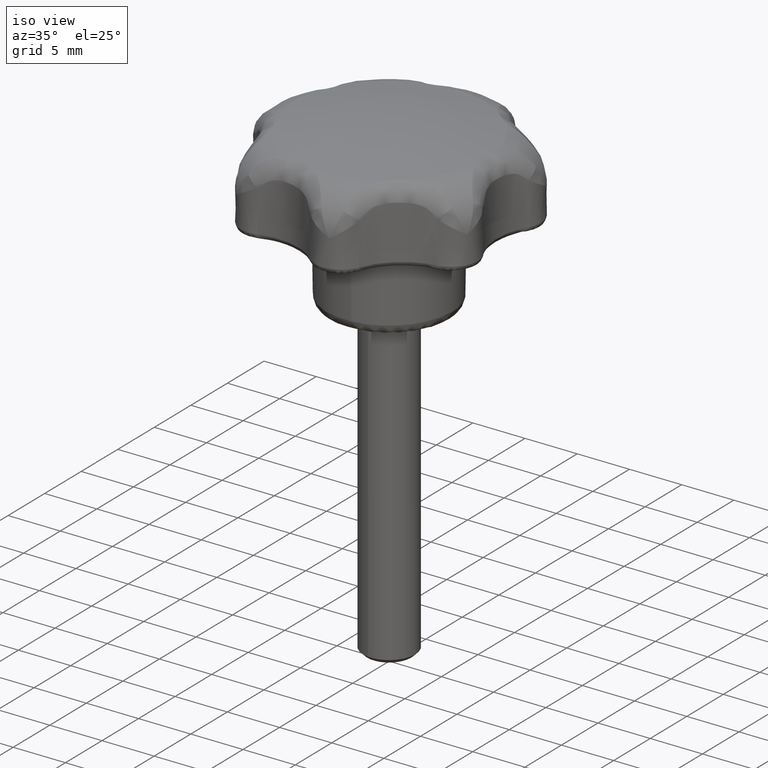
[diagram: clean part render]
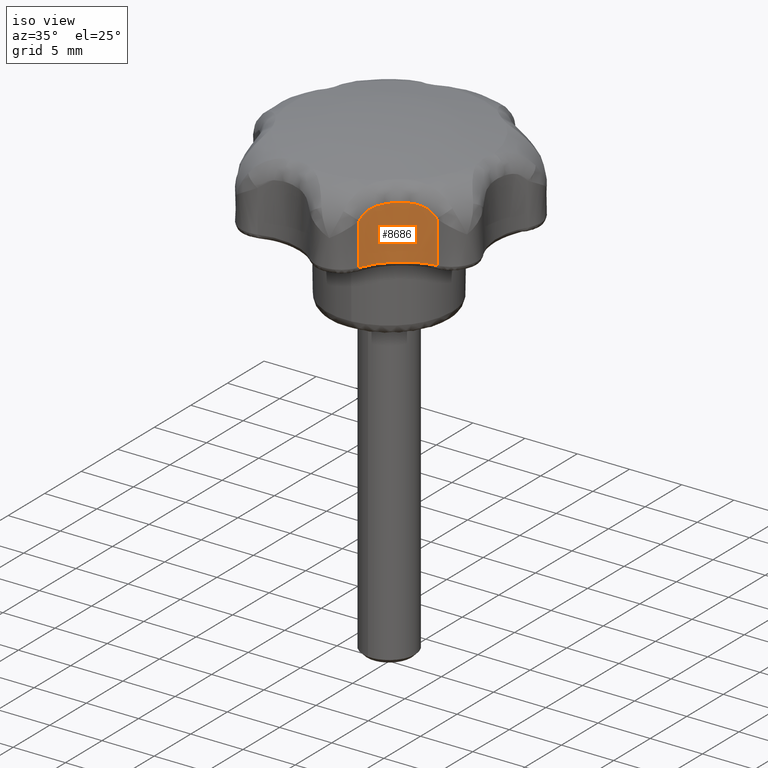
[diagram: same view with one face highlighted and labeled with its STEP entity id]
A machine part, iso view. The second image highlights one B-rep face of the part: STEP entity #8686.
In plain terms, the highlighted face is a freeform B-spline surface patch.
Its self-contained STEP definition (entity closure, byte-faithful):
#1271=CARTESIAN_POINT('',(9.352328902325711,-6.815245265479380,4.529263871044691));
#1272=VERTEX_POINT('',#1271);
#1412=CARTESIAN_POINT('',(7.228323154483910,-7.531859688448060,5.602181755613060));
#1413=VERTEX_POINT('',#1412);
#1427=CARTESIAN_POINT('',(9.352328902325711,-6.815245265479380,4.529263871044691));
#1428=CARTESIAN_POINT('',(9.231726878122949,-6.831931750824026,4.710587859803886));
#1429=CARTESIAN_POINT('',(9.088493858250363,-6.855343513871315,4.869634969981575));
#1430=CARTESIAN_POINT('',(8.882117092742400,-6.899349992789642,5.040415563436484));
#1431=CARTESIAN_POINT('',(8.839307908005837,-6.908939601489816,5.073255298817595));
#1432=CARTESIAN_POINT('',(8.752364488465759,-6.929469035929506,5.135106001774219));
#1433=CARTESIAN_POINT('',(8.619597241947103,-6.962355733786815,5.222492042457050));
#1434=CARTESIAN_POINT('',(8.480401390634899,-7.001941231082210,5.294640455228734));
#1435=CARTESIAN_POINT('',(8.290135622189576,-7.061390004140926,5.378835849224731));
#1436=CARTESIAN_POINT('',(8.192172584912637,-7.094659527593313,5.415024819690480));
#1437=CARTESIAN_POINT('',(7.997420612490962,-7.166631767255672,5.475694393833916));
#1438=CARTESIAN_POINT('',(7.900132508834723,-7.205460456293839,5.500463178935267));
#1439=CARTESIAN_POINT('',(7.706315155494604,-7.288854992439655,5.541537383512058));
#1440=CARTESIAN_POINT('',(7.609784988865734,-7.333420332629392,5.557839501411896));
#1441=CARTESIAN_POINT('',(7.417969923607048,-7.428325965818433,5.584218346163751));
#1442=CARTESIAN_POINT('',(7.322427377524405,-7.478812899554172,5.594315695242823));
#1443=CARTESIAN_POINT('',(7.228323154483906,-7.531859688448057,5.602181755613054));
#1444=B_SPLINE_CURVE_WITH_KNOTS('',3,(#1427,#1428,#1429,#1430,#1431,#1432,#1433,#1434,#1435,#1436,#1437,#1438,#1439,#1440,#1441,#1442,#1443),.UNSPECIFIED.,.F.,.U.,(4,2,2,1,2,2,2,2,4),(0.0,0.250000000000002,0.312500000000002,0.375000000000002,0.500000000000001,0.625000000000001,0.750000000000001,0.875000000000000,1.0),.UNSPECIFIED.);
#1445=EDGE_CURVE('',#1272,#1413,#1444,.T.);
#1526=CARTESIAN_POINT('',(5.734567091649440,-8.723090407848028,5.602181755613060));
#1527=VERTEX_POINT('',#1526);
#1541=CARTESIAN_POINT('',(7.228323154483910,-7.531859688448060,5.602181755613060));
#1542=CARTESIAN_POINT('',(6.947344979361283,-7.690247797482276,5.625668387953464));
#1543=CARTESIAN_POINT('',(6.418024048291525,-8.047947536462839,5.648675287855698));
#1544=CARTESIAN_POINT('',(5.951507604138305,-8.484401610415590,5.625668387953435));
#1545=CARTESIAN_POINT('',(5.734567091649440,-8.723090407848028,5.602181755613060));
#1546=B_SPLINE_CURVE_WITH_KNOTS('',3,(#1541,#1542,#1543,#1544,#1545),.UNSPECIFIED.,.F.,.U.,(4,1,4),(0.0,0.500000000000000,1.0),.UNSPECIFIED.);
#1547=EDGE_CURVE('',#1413,#1527,#1546,.T.);
#1651=CARTESIAN_POINT('',(4.563284031942840,-10.634380462738219,4.529264595418580));
#1652=VERTEX_POINT('',#1651);
#1666=CARTESIAN_POINT('',(5.734567091649440,-8.723090407848027,5.602181755613051));
#1667=CARTESIAN_POINT('',(5.589482450676374,-8.882719783119999,5.586474456032704));
#1668=CARTESIAN_POINT('',(5.454332468420760,-9.048728795040828,5.562309618087499));
#1669=CARTESIAN_POINT('',(5.298179697445258,-9.262526521243839,5.510810898392637));
#1670=CARTESIAN_POINT('',(5.267589491647332,-9.305597900756579,5.499428236304374));
#1671=CARTESIAN_POINT('',(5.207702770603985,-9.392310617130974,5.474150183519468));
#1672=CARTESIAN_POINT('',(5.178326939964452,-9.436076669235687,5.460208121446759));
#1673=CARTESIAN_POINT('',(5.092957479138290,-9.566900615465737,5.414485364029898));
#1674=CARTESIAN_POINT('',(5.039626461095650,-9.653595491304236,5.378807869619611));
#1675=CARTESIAN_POINT('',(4.939895909326869,-9.824852375426184,5.295158151736826));
#1676=CARTESIAN_POINT('',(4.893495177853029,-9.909417114855282,5.247192760192351));
#1677=CARTESIAN_POINT('',(4.828879390034158,-10.033782008367419,5.164512701093246));
#1678=CARTESIAN_POINT('',(4.808103951131888,-10.074966215164920,5.135038576535954));
#1679=CARTESIAN_POINT('',(4.768781966527458,-10.155083052631269,5.073244602502070));
#1680=CARTESIAN_POINT('',(4.750169611128169,-10.194133606247810,5.040862163473928));
#1681=CARTESIAN_POINT('',(4.697241583424924,-10.308142271122630,4.939245517037857));
#1682=CARTESIAN_POINT('',(4.665827380673394,-10.379962369630430,4.865550401078675));
#1683=CARTESIAN_POINT('',(4.609648329160852,-10.514540021469720,4.706058085630367));
#1684=CARTESIAN_POINT('',(4.584823504208689,-10.577482040227840,4.619872450888252));
#1685=CARTESIAN_POINT('',(4.563284031942840,-10.634380462738219,4.529264595418580));
#1686=B_SPLINE_CURVE_WITH_KNOTS('',3,(#1666,#1667,#1668,#1669,#1670,#1671,#1672,#1673,#1674,#1675,#1676,#1677,#1678,#1679,#1680,#1681,#1682,#1683,#1684,#1685),.UNSPECIFIED.,.F.,.U.,(4,2,2,2,2,2,2,2,2,4),(0.0,0.249999999999998,0.312499999999998,0.374999999999998,0.499999999999999,0.624999999999999,0.687499999999999,0.749999999999999,0.875000000000000,1.0),.UNSPECIFIED.);
#1687=EDGE_CURVE('',#1527,#1652,#1686,.T.);
#6274=CARTESIAN_POINT('',(4.563284031942840,-10.634380462738219,0.499999999999945));
#6275=VERTEX_POINT('',#6274);
#6418=CARTESIAN_POINT('',(9.352328902325711,-6.815245265479380,0.499999999999945));
#6419=VERTEX_POINT('',#6418);
#6433=CARTESIAN_POINT('',(4.563284031942842,-10.634380462738219,0.499999999999945));
#6434=CARTESIAN_POINT('',(5.824262699804353,-7.303393698800862,0.499999999999945));
#6435=CARTESIAN_POINT('',(9.352328902325711,-6.815245265479380,0.499999999999945));
#6443=(BOUNDED_CURVE()B_SPLINE_CURVE(2,(#6433,#6434,#6435),.UNSPECIFIED.,.F.,.U.)CURVE()GEOMETRIC_REPRESENTATION_ITEM()QUASI_UNIFORM_CURVE()RATIONAL_B_SPLINE_CURVE((1.0,0.859906545173898,1.0))REPRESENTATION_ITEM(''));
#6444=EDGE_CURVE('',#6275,#6419,#6443,.T.);
#8656=CARTESIAN_POINT('',(9.571937958565741,-6.788974983543757,5.765601133852190));
#8657=CARTESIAN_POINT('',(9.571937958565741,-6.788974983543757,0.368359971653638));
#8658=CARTESIAN_POINT('',(5.664156648546678,-7.183524337908878,5.765601133852190));
#8659=CARTESIAN_POINT('',(5.664156648546678,-7.183524337908878,0.368359971653638));
#8660=CARTESIAN_POINT('',(4.462416059236627,-10.922808161847483,5.765601133852190));
#8661=CARTESIAN_POINT('',(4.462416059236627,-10.922808161847483,0.368359971653638));
#8669=(BOUNDED_SURFACE()B_SPLINE_SURFACE(1,2,((#8656,#8658,#8660),(#8657,#8659,#8661)),.UNSPECIFIED.,.F.,.F.,.U.)B_SPLINE_SURFACE_WITH_KNOTS((2,2),(3,3),(0.0,5.397241162198552),(0.0,7.156749267452148),.UNSPECIFIED.)GEOMETRIC_REPRESENTATION_ITEM()RATIONAL_B_SPLINE_SURFACE(((1.0,0.833240438604861,0.991800910766828),(1.0,0.833240438604861,0.991800910766828)))REPRESENTATION_ITEM('')SURFACE());
#8670=CARTESIAN_POINT('',(9.352328902325711,-6.815245265479380,4.529263871044691));
#8671=CARTESIAN_POINT('',(9.352328902325711,-6.815245265479380,0.499999999999945));
#8672=QUASI_UNIFORM_CURVE('',1,(#8670,#8671),.UNSPECIFIED.,.F.,.U.);
#8673=EDGE_CURVE('',#1272,#6419,#8672,.T.);
#8674=ORIENTED_EDGE('',*,*,#8673,.F.);
#8675=ORIENTED_EDGE('',*,*,#1445,.T.);
#8676=ORIENTED_EDGE('',*,*,#1547,.T.);
#8677=ORIENTED_EDGE('',*,*,#1687,.T.);
#8678=CARTESIAN_POINT('',(4.563284031942840,-10.634380462738219,4.529264595418580));
#8679=CARTESIAN_POINT('',(4.563284031942840,-10.634380462738219,0.499999999999945));
#8680=QUASI_UNIFORM_CURVE('',1,(#8678,#8679),.UNSPECIFIED.,.F.,.U.);
#8681=EDGE_CURVE('',#1652,#6275,#8680,.T.);
#8682=ORIENTED_EDGE('',*,*,#8681,.T.);
#8683=ORIENTED_EDGE('',*,*,#6444,.T.);
#8684=EDGE_LOOP('',(#8674,#8675,#8676,#8677,#8682,#8683));
#8685=FACE_OUTER_BOUND('',#8684,.T.);
#8686=ADVANCED_FACE('',(#8685),#8669,.F.);